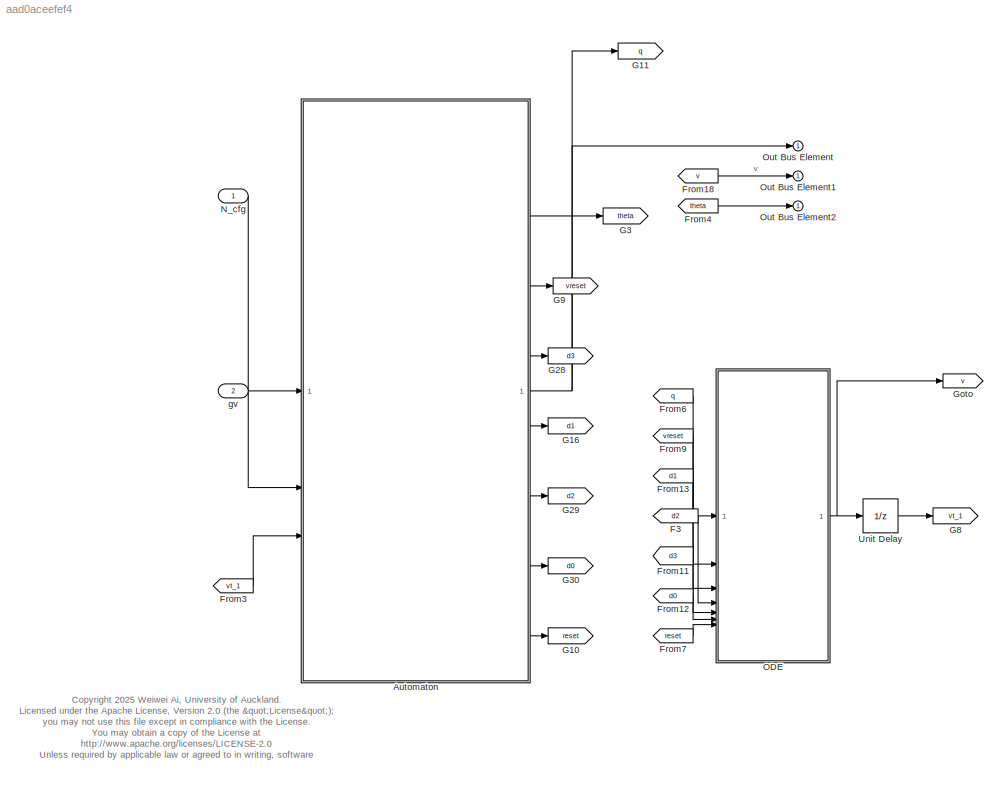
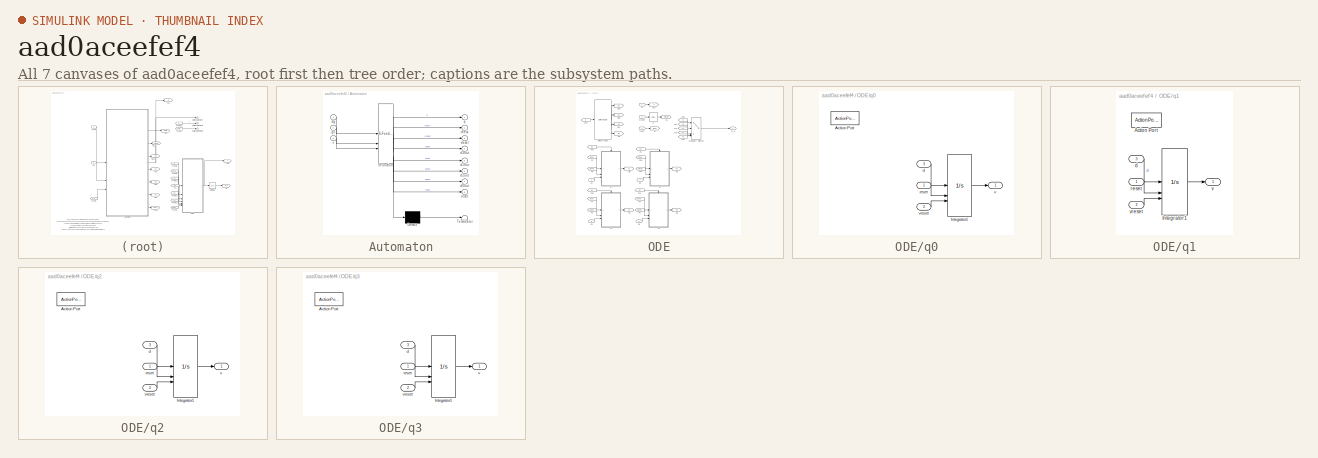
[diagram: thumbnail index - all 7 canvases of the model, root first then tree order]
MODEL slx_aad0aceefef4
KIND model
CONFIG AbsTol = auto
CONFIG EnableMultiTasking = off
CONFIG FixedStep = 0.5e-3
CONFIG MaxStep = auto
CONFIG MinStep = auto
CONFIG RelTol = 1e-3
CONFIG SampleTimeConstraint = Unconstrained
CONFIG SolverName = ode1
CONFIG StartTime = 0.0
CONFIG StopTime = 10.0
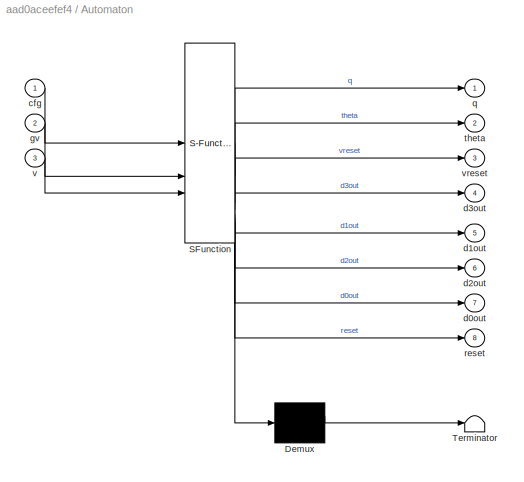
BLOCK [SubSystem] Automaton
  ErrorFcn = Stateflow.Translate.translate
  PermitHierarchicalResolution = ExplicitOnly
  SFBlockType = Chart
  TreatAsAtomicUnit = on
BLOCK [Demux] Automaton/ Demux 
  Outputs = 1
BLOCK [S-Function] Automaton/ SFunction 
  EnableBusSupport = on
  FunctionName = sf_sfun
  PortCounts = [3 9]
  SFcnIsStateOwnerBlock = off
  SFunctionDeploymentMode = off
  Tag = Stateflow S-Function 46
BLOCK [Terminator] Automaton/ Terminator 
BLOCK [Inport] Automaton/cfg
BLOCK [Outport] Automaton/d0out
  Port = 7
BLOCK [Outport] Automaton/d1out
  Port = 5
BLOCK [Outport] Automaton/d2out
  Port = 6
BLOCK [Outport] Automaton/d3out
  Port = 4
BLOCK [Inport] Automaton/gv
  Port = 2
BLOCK [Outport] Automaton/q
BLOCK [Outport] Automaton/reset
  Port = 8
BLOCK [Outport] Automaton/theta
  Port = 2
BLOCK [Inport] Automaton/v
  Port = 3
BLOCK [Outport] Automaton/vreset
  Port = 3
BLOCK [From] F3
  GotoTag = d2
BLOCK [From] From11
  GotoTag = d3
BLOCK [From] From12
  GotoTag = d0
BLOCK [From] From13
  GotoTag = d1
BLOCK [From] From18
  GotoTag = v
BLOCK [From] From3
  GotoTag = vt_1
BLOCK [From] From4
  GotoTag = theta
BLOCK [From] From6
  GotoTag = q
BLOCK [From] From7
  GotoTag = reset
BLOCK [From] From9
  GotoTag = vreset
BLOCK [Goto] G10
  GotoTag = reset
BLOCK [Goto] G11
  GotoTag = q
BLOCK [Goto] G16
  GotoTag = d1
BLOCK [Goto] G28
  GotoTag = d3
BLOCK [Goto] G29
  GotoTag = d2
BLOCK [Goto] G3
  GotoTag = theta
BLOCK [Goto] G30
  GotoTag = d0
BLOCK [Goto] G8
  GotoTag = vt_1
BLOCK [Goto] G9
  GotoTag = vreset
BLOCK [Goto] Goto
  GotoTag = v
BLOCK [Inport] N_cfg
  BusOutputAsStruct = on
  OutDataTypeStr = Bus: Config_N
  SamplingMode = Sample based
  SignalType = real
  VarSizeSig = No
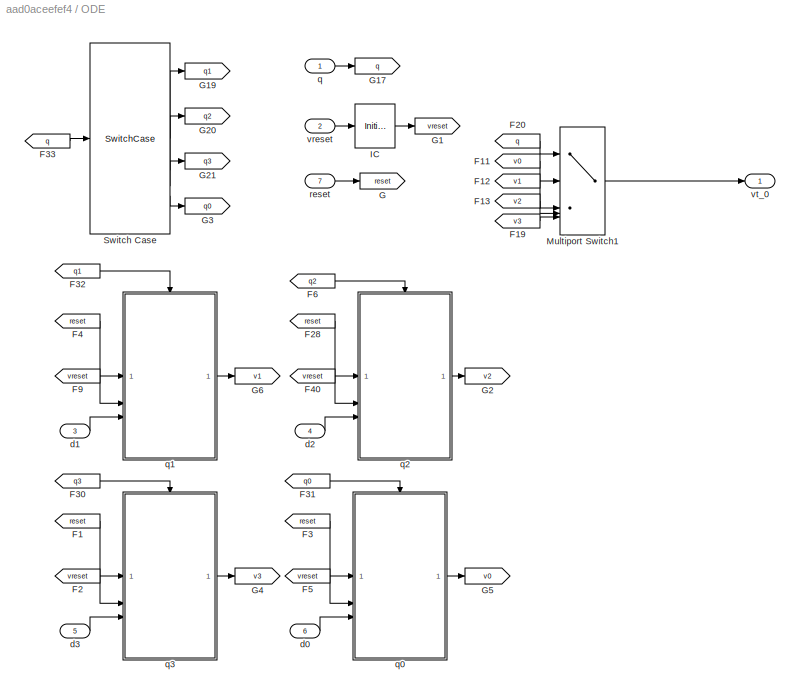
BLOCK [SubSystem] ODE
BLOCK [From] ODE/F1
  GotoTag = reset
BLOCK [From] ODE/F11
  GotoTag = v0
BLOCK [From] ODE/F12
  GotoTag = v1
BLOCK [From] ODE/F13
  GotoTag = v2
BLOCK [From] ODE/F19
  GotoTag = v3
BLOCK [From] ODE/F2
  GotoTag = vreset
BLOCK [From] ODE/F20
  GotoTag = q
BLOCK [From] ODE/F28
  GotoTag = reset
BLOCK [From] ODE/F3
  GotoTag = reset
BLOCK [From] ODE/F30
  GotoTag = q3
BLOCK [From] ODE/F31
  GotoTag = q0
BLOCK [From] ODE/F32
  GotoTag = q1
BLOCK [From] ODE/F33
  GotoTag = q
BLOCK [From] ODE/F4
  GotoTag = reset
BLOCK [From] ODE/F40
  GotoTag = vreset
BLOCK [From] ODE/F5
  GotoTag = vreset
BLOCK [From] ODE/F6
  GotoTag = q2
BLOCK [From] ODE/F9
  GotoTag = vreset
BLOCK [Goto] ODE/G
  GotoTag = reset
BLOCK [Goto] ODE/G1
  GotoTag = vreset
BLOCK [Goto] ODE/G17
  GotoTag = q
BLOCK [Goto] ODE/G19
  GotoTag = q1
BLOCK [Goto] ODE/G2
  GotoTag = v2
BLOCK [Goto] ODE/G20
  GotoTag = q2
BLOCK [Goto] ODE/G21
  GotoTag = q3
BLOCK [Goto] ODE/G3
  GotoTag = q0
BLOCK [Goto] ODE/G4
  GotoTag = v3
BLOCK [Goto] ODE/G5
  GotoTag = v0
BLOCK [Goto] ODE/G6
  GotoTag = v1
BLOCK [InitialCondition] ODE/IC
  Value = 0
BLOCK [MultiPortSwitch] ODE/Multiport Switch1
  DataPortOrder = Zero-based contiguous
  InputSameDT = off
  Inputs = 4
  SaturateOnIntegerOverflow = off
  zeroidx = on
BLOCK [SwitchCase] ODE/Switch Case
  CaseConditions = {1,2,3,0}
  ShowDefaultCase = off
BLOCK [Inport] ODE/d0
  Port = 6
BLOCK [Inport] ODE/d1
  Port = 3
BLOCK [Inport] ODE/d2
  Port = 4
BLOCK [Inport] ODE/d3
  Port = 5
BLOCK [Inport] ODE/q
BLOCK [SubSystem] ODE/q0
  TreatAsAtomicUnit = on
BLOCK [ActionPort] ODE/q0/Action Port
  ActionPortLabel = case [ 0 ]:
  InitializeStates = reset
BLOCK [Integrator] ODE/q0/Integrator1
  ExternalReset = either
  InitialCondition = 20
  InitialConditionSource = external
BLOCK [Inport] ODE/q0/d
  Port = 3
BLOCK [Inport] ODE/q0/reset
BLOCK [Outport] ODE/q0/v
BLOCK [Inport] ODE/q0/vreset
  Port = 2
BLOCK [SubSystem] ODE/q1
  TreatAsAtomicUnit = on
BLOCK [ActionPort] ODE/q1/Action Port
  ActionPortLabel = case [ 1 ]:
  InitializeStates = reset
BLOCK [Integrator] ODE/q1/Integrator1
  ExternalReset = either
  InitialCondition = 20
  InitialConditionSource = external
BLOCK [Inport] ODE/q1/d
  Port = 3
BLOCK [Inport] ODE/q1/reset
BLOCK [Outport] ODE/q1/v
BLOCK [Inport] ODE/q1/vreset
  Port = 2
BLOCK [SubSystem] ODE/q2
  TreatAsAtomicUnit = on
BLOCK [ActionPort] ODE/q2/Action Port
  ActionPortLabel = case [ 2 ]:
  InitializeStates = reset
BLOCK [Integrator] ODE/q2/Integrator1
  ExternalReset = either
  InitialCondition = 20
  InitialConditionSource = external
BLOCK [Inport] ODE/q2/d
  Port = 3
BLOCK [Inport] ODE/q2/reset
BLOCK [Outport] ODE/q2/v
BLOCK [Inport] ODE/q2/vreset
  Port = 2
BLOCK [SubSystem] ODE/q3
  TreatAsAtomicUnit = on
BLOCK [ActionPort] ODE/q3/Action Port
  ActionPortLabel = case [ 3 ]:
  InitializeStates = reset
BLOCK [Integrator] ODE/q3/Integrator1
  ExternalReset = either
  InitialCondition = 20
  InitialConditionSource = external
BLOCK [Inport] ODE/q3/d
  Port = 3
BLOCK [Inport] ODE/q3/reset
BLOCK [Outport] ODE/q3/v
BLOCK [Inport] ODE/q3/vreset
  Port = 2
BLOCK [Inport] ODE/reset
  Port = 7
BLOCK [Inport] ODE/vreset
  Port = 2
BLOCK [Outport] ODE/vt_0
BLOCK [Outport] Out Bus Element
BLOCK [Outport] Out Bus Element1
BLOCK [Outport] Out Bus Element2
BLOCK [UnitDelay] Unit Delay
  HasFrameUpgradeWarning = on
  SampleTime = -1
BLOCK [Inport] gv
  OutDataTypeStr = double
  Port = 2
  PortDimensions = 1
  SamplingMode = Sample based
  SignalType = real
ANNOTATION (root): <copyright redacted>
NET Automaton:1 -> G11:1, Out Bus Element:1
LINE Automaton:2 -> G3:1
LINE Automaton:3 -> G9:1
LINE Automaton:4 -> G28:1
LINE Automaton:5 -> G16:1
LINE Automaton:6 -> G29:1
LINE Automaton:7 -> G30:1
LINE Automaton:8 -> G10:1
LINE F3:1 -> ODE:4
LINE From11:1 -> ODE:5
LINE From12:1 -> ODE:6
LINE From13:1 -> ODE:3
LINE From18:1 -> Out Bus Element1:1
LINE From3:1 -> Automaton:3
LINE From4:1 -> Out Bus Element2:1
LINE From6:1 -> ODE:1
LINE From7:1 -> ODE:7
LINE From9:1 -> ODE:2
LINE N_cfg:1 -> Automaton:1
LINE ODE/F11:1 -> ODE/Multiport Switch1:2
LINE ODE/F12:1 -> ODE/Multiport Switch1:3
LINE ODE/F13:1 -> ODE/Multiport Switch1:4
LINE ODE/F19:1 -> ODE/Multiport Switch1:5
LINE ODE/F1:1 -> ODE/q3:1
LINE ODE/F20:1 -> ODE/Multiport Switch1:1
LINE ODE/F28:1 -> ODE/q2:1
LINE ODE/F2:1 -> ODE/q3:2
LINE ODE/F30:1 -> ODE/q3:ifaction
LINE ODE/F31:1 -> ODE/q0:ifaction
LINE ODE/F32:1 -> ODE/q1:ifaction
LINE ODE/F33:1 -> ODE/Switch Case:1
LINE ODE/F3:1 -> ODE/q0:1
LINE ODE/F40:1 -> ODE/q2:2
LINE ODE/F4:1 -> ODE/q1:1
LINE ODE/F5:1 -> ODE/q0:2
LINE ODE/F6:1 -> ODE/q2:ifaction
LINE ODE/F9:1 -> ODE/q1:2
LINE ODE/IC:1 -> ODE/G1:1
LINE ODE/Multiport Switch1:1 -> ODE/vt_0:1
LINE ODE/Switch Case:1 -> ODE/G19:1
LINE ODE/Switch Case:2 -> ODE/G20:1
LINE ODE/Switch Case:3 -> ODE/G21:1
LINE ODE/Switch Case:4 -> ODE/G3:1
LINE ODE/d0:1 -> ODE/q0:3
LINE ODE/d1:1 -> ODE/q1:3
LINE ODE/d2:1 -> ODE/q2:3
LINE ODE/d3:1 -> ODE/q3:3
LINE ODE/q0/Integrator1:1 -> ODE/q0/v:1
LINE ODE/q0/d:1 -> ODE/q0/Integrator1:1
LINE ODE/q0/reset:1 -> ODE/q0/Integrator1:2
LINE ODE/q0/vreset:1 -> ODE/q0/Integrator1:3
LINE ODE/q0:1 -> ODE/G5:1
LINE ODE/q1/Integrator1:1 -> ODE/q1/v:1
LINE ODE/q1/d:1 -> ODE/q1/Integrator1:1
LINE ODE/q1/reset:1 -> ODE/q1/Integrator1:2
LINE ODE/q1/vreset:1 -> ODE/q1/Integrator1:3
LINE ODE/q1:1 -> ODE/G6:1
LINE ODE/q2/Integrator1:1 -> ODE/q2/v:1
LINE ODE/q2/d:1 -> ODE/q2/Integrator1:1
LINE ODE/q2/reset:1 -> ODE/q2/Integrator1:2
LINE ODE/q2/vreset:1 -> ODE/q2/Integrator1:3
LINE ODE/q2:1 -> ODE/G2:1
LINE ODE/q3/Integrator1:1 -> ODE/q3/v:1
LINE ODE/q3/d:1 -> ODE/q3/Integrator1:1
LINE ODE/q3/reset:1 -> ODE/q3/Integrator1:2
LINE ODE/q3/vreset:1 -> ODE/q3/Integrator1:3
LINE ODE/q3:1 -> ODE/G4:1
LINE ODE/q:1 -> ODE/G17:1
LINE ODE/reset:1 -> ODE/G:1
LINE ODE/vreset:1 -> ODE/IC:1
NET ODE:1 -> Goto:1, Unit Delay:1
LINE Unit Delay:1 -> G8:1
LINE gv:1 -> Automaton:2
note: NET lines group one-source signal fan-out (src -> all destinations, sorted); 1:1 wires keep LINE
CHART Automaton states=12 transitions=8
  STATE_LABEL '[pd2,pERP,pd0,pMDP,pVT,pVR,pVh,phr,phs,ps,pj,pm,ph,pf,pr]=get_cfg(pcfg)'
  STATE_LABEL 'SCRIPT:\nfunction [pd2,pERP,pd0,pMDP,pVT,pVR,pVh,phr,phs,ps,pj,pm,ph,pf,pr]=get_cfg(pcfg)\n%#codegen\npd2=pcfg.d2;\npERP=pcfg.ERP;\npd0=pcfg.d0;\npMDP=pcfg.MDP;\npVT=pcfg.VT;\npVR=pcfg.VR;\npVh=pcfg.Vh;\nphr=pcfg.hr;\nphs=pcfg.hs;\nps=pcfg.s;\npj=pcfg.j;\npm=pcfg.m;\nph=pcfg.h;\npf=pcfg.f;\npr=pcfg.r;\n'
  STATE_LABEL '[f3out,tout,Vminout]=sat(pt,phr,phs,pVh,ps,pm,ptheta)'
  STATE_LABEL 'SCRIPT:\nfunction [f3out,tout,Vminout]=sat(pt,phr,phs,pVh,ps,pm,ptheta)\n\ntd=phr*(pt-phs);\n\nif td>=5\n    tout=5/phr+phs;\nelse\n    tout=pt;\nend\n\nif tout<1\nco=0;\nelse\nVtemp=1+exp(-phr*(tout-phs)); \nco=1/Vtemp;\nend\nVminout=pVh*co;\nthetai=ptheta;\nfor i=1:ps-1\n    thetai=thetai*ptheta;\nend\nft=pm*co*thetai+1;\nf3out=1/ft;\nend\n \n'
  STATE_LABEL 'd3in= d3fcn(pMDP,pVR,pVT,pd0,pd2,pERP)'
  STATE_LABEL 'SCRIPT:\nfunction d3in= d3fcn(pMDP,pVR,pVT,pd0,pd2,pERP)\n%#codegen\nd3in=-(abs(pMDP)-pVR)/(pERP-(abs(pMDP)-pVT)/pd2-pVR/abs(pd0));\n'
  STATE_LABEL 'rr= RR(pcfg,pt)'
  STATE_LABEL "SCRIPT:\nfunction rr= RR(pcfg,pt)\n%Rate dependent factor\nc1=0.01;\nc2=0.01;\nif pcfg.sigma1sq<0 || pcfg.sigma2sq<0\n    error('Invalid input');\nend\n% The Gaussian frequency distribution, power spectrum\nhf=0.5;\nfstep=0.025;\nff=0:fstep:hf; % The frequency range original;\n% fmax=1; % Assume the highest frequency\n% fmin=0.025; % Assume the lowest frequency\n% Fs=2*fmax; % The sample frequency \n% tstep=1/Fs...<+615ch>"
  STATE_LABEL 'PacemakerCell'
  STATE_LABEL 'Cell'
  STATE_LABEL 'Slow\nen: q=1; %phase4\n\n\n\n\n\n'
  STATE_LABEL 'Stimulated\nen: q=2; %phase0\nf1theta=exp(-h*theta);\nVmax=(-1)*MDP*f1theta;\n[f3theta,n,Vmin]=sat(n,hr,hs,Vh1,s,m,theta);\n\n'
  STATE_LABEL 'Plateau\nen: q=3;%phase2\n'
  STATE_LABEL 'RP\nen:q=0;%phase3\n'
  STATE_LABEL '/{Vmin=0;Vmax=(-1)*MDP; d3=d3fcn(MDP,VR,VT,d0,d2,ERP); BCL=RR(cfg,t);...\nt3=(abs(MDP)-VR)/abs(d3); t0=VR/abs(d0);t2=(abs(MDP)-VT)/abs(d2);d1=(VT)/(BCL-t3-t0-t2);d1out=d1;} '
  STATE_LABEL '[gv>VT&& v<VT]{theta=(v-VT)/(Vmin-VT);f2theta=exp(-f*theta);d2out=d2*f2theta;...\n f4theta=exp(j*(theta-1)); Vh1=Vh*f4theta; n=n+1;  ...\n vreset=v;reset; }'
  STATE_LABEL '[v>=VT]{theta=0; f2theta=exp(-f*theta); d2out=d2*f2theta;...\n n=(1-r)*n;  vreset=v;reset; }'
  STATE_LABEL '[v<=Vmin]{[d2,ERP,d0,MDP,VT,VR,Vh,hr,hs,s,j,m,h,f,r]=get_cfg(cfg);\nt3=(abs(MDP)-VR)/abs(d3); t0=VR/abs(d0);...\nt2=(abs(MDP)-VT)/abs(d2);\nBCL=RR(cfg,t);\nd1=(VT)/(BCL-t3-t0-t2); d1out=d1*f3theta;...\nvreset=v;reset;}'
  STATE_LABEL '[v>=Vmax]{d3=d3fcn(MDP,VR,VT,d0,d2,ERP);...\nd3out=d3*f2theta;...\nvreset=v;reset;}'
  STATE_LABEL '[v<=VR]{d0out=d0*f2theta; vreset=v;reset;}'
  STATE_LABEL 'R\ndu:\nt=temporalCount(sec);'
  STATE_LABEL 'Cell'
  STATE_LABEL 'Slow\nen: q=1; %phase4\n\n\n\n\n\n'
  STATE_LABEL 'Stimulated\nen: q=2; %phase0\nf1theta=exp(-h*theta);\nVmax=(-1)*MDP*f1theta;\n[f3theta,n,Vmin]=sat(n,hr,hs,Vh1,s,m,theta);\n\n'
  STATE_LABEL 'Plateau\nen: q=3;%phase2\n'
  STATE_LABEL 'RP\nen:q=0;%phase3\n'
  STATE_LABEL '/{Vmin=0;Vmax=(-1)*MDP; d3=d3fcn(MDP,VR,VT,d0,d2,ERP); BCL=RR(cfg,t);...\nt3=(abs(MDP)-VR)/abs(d3); t0=VR/abs(d0);t2=(abs(MDP)-VT)/abs(d2);d1=(VT)/(BCL-t3-t0-t2);d1out=d1;} '
  STATE_LABEL '[gv>VT&& v<VT]{theta=(v-VT)/(Vmin-VT);f2theta=exp(-f*theta);d2out=d2*f2theta;...\n f4theta=exp(j*(theta-1)); Vh1=Vh*f4theta; n=n+1;  ...\n vreset=v;reset; }'
  STATE_LABEL '[v>=VT]{theta=0; f2theta=exp(-f*theta); d2out=d2*f2theta;...\n n=(1-r)*n;  vreset=v;reset; }'
  STATE_LABEL '[v<=Vmin]{[d2,ERP,d0,MDP,VT,VR,Vh,hr,hs,s,j,m,h,f,r]=get_cfg(cfg);\nt3=(abs(MDP)-VR)/abs(d3); t0=VR/abs(d0);...\nt2=(abs(MDP)-VT)/abs(d2);\nBCL=RR(cfg,t);\nd1=(VT)/(BCL-t3-t0-t2); d1out=d1*f3theta;...\nvreset=v;reset;}'
  STATE_LABEL '[v>=Vmax]{d3=d3fcn(MDP,VR,VT,d0,d2,ERP);...\nd3out=d3*f2theta;...\nvreset=v;reset;}'
  STATE_LABEL '[v<=VR]{d0out=d0*f2theta; vreset=v;reset;}'
  STATE_LABEL 'Slow\nen: q=1; %phase4\n\n\n\n\n\n'
  STATE_LABEL 'Stimulated\nen: q=2; %phase0\nf1theta=exp(-h*theta);\nVmax=(-1)*MDP*f1theta;\n[f3theta,n,Vmin]=sat(n,hr,hs,Vh1,s,m,theta);\n\n'
  STATE_LABEL 'Plateau\nen: q=3;%phase2\n'
  STATE_LABEL 'RP\nen:q=0;%phase3\n'
  STATE_LABEL 'R\ndu:\nt=temporalCount(sec);'
  STATE_LABEL 'Init'
CHART  states=0 transitions=0
